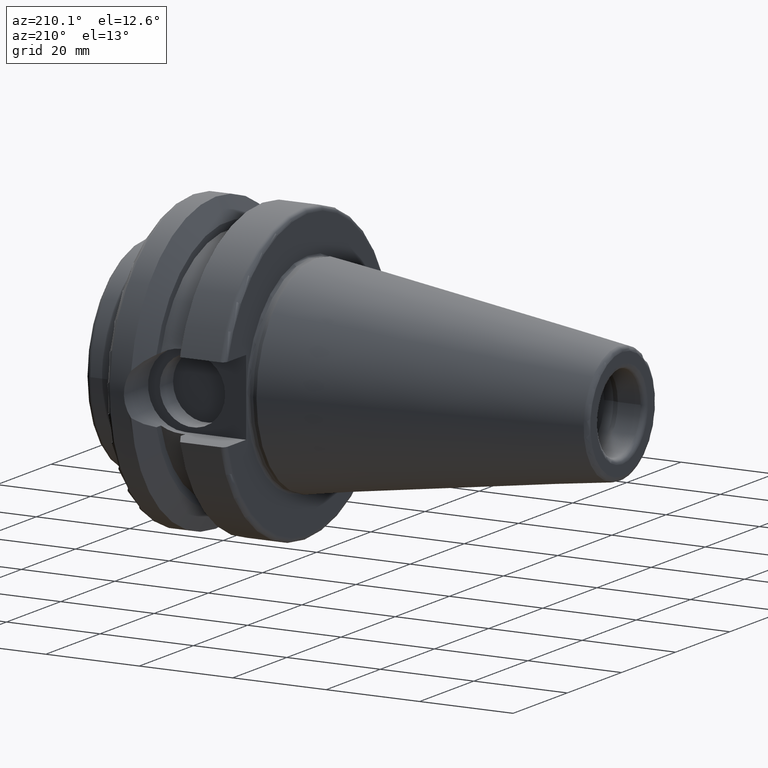
[diagram: clean part render]
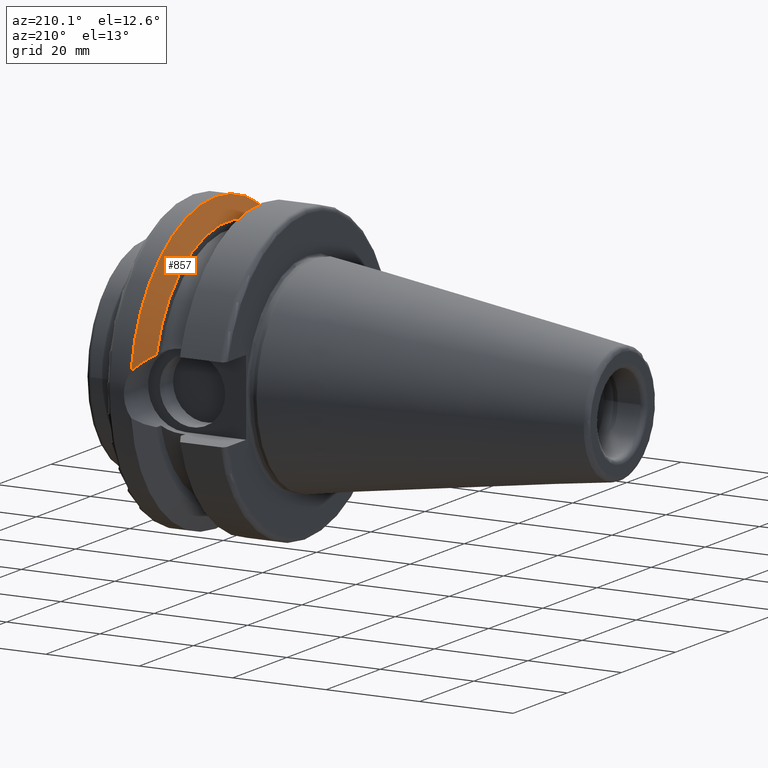
[diagram: same view with one face highlighted and labeled with its STEP entity id]
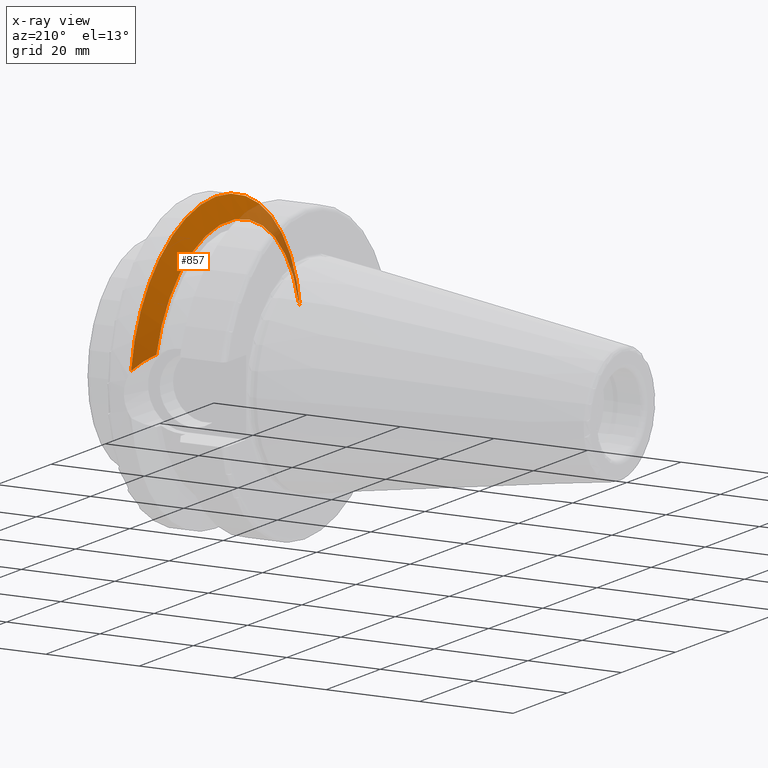
[diagram: x-ray of the same camera — body ghosted, the highlighted face saturated]
A machine part, auxiliary view. The second image highlights one B-rep face of the part: STEP entity #857.
The next image is the same camera in x-ray: the body ghosted, the highlighted face saturated — about 14% of this face is hidden behind the body in this view.
In plain terms, the highlighted conical surface has half-angle 60.125 deg.
Its self-contained STEP definition (entity closure, byte-faithful):
#23=CONICAL_SURFACE('',#975,29.2970358274569,1.0493792127616);
#54=B_SPLINE_CURVE_WITH_KNOTS('',3,(#1458,#1459,#1460,#1461,#1462,#1463),
 .UNSPECIFIED.,.F.,.F.,(4,2,4),(1.46421027899559,1.54570476603972,2.04294020568399),
 .UNSPECIFIED.);
#62=B_SPLINE_CURVE_WITH_KNOTS('',3,(#1601,#1602,#1603,#1604,#1605,#1606),
 .UNSPECIFIED.,.F.,.F.,(4,2,4),(3.12975744792547,3.62699288756974,3.70848737461386),
 .UNSPECIFIED.);
#119=FACE_OUTER_BOUND('',#178,.T.);
#178=EDGE_LOOP('',(#748,#749,#750,#751));
#307=CIRCLE('',#939,31.5);
#324=CIRCLE('',#974,27.0940716549138);
#379=VERTEX_POINT('',#1450);
#380=VERTEX_POINT('',#1457);
#390=VERTEX_POINT('',#1499);
#408=VERTEX_POINT('',#1599);
#473=EDGE_CURVE('',#380,#379,#54,.T.);
#487=EDGE_CURVE('',#390,#379,#307,.T.);
#514=EDGE_CURVE('',#390,#408,#62,.T.);
#527=EDGE_CURVE('',#408,#380,#324,.T.);
#748=ORIENTED_EDGE('',*,*,#473,.T.);
#749=ORIENTED_EDGE('',*,*,#487,.F.);
#750=ORIENTED_EDGE('',*,*,#514,.T.);
#751=ORIENTED_EDGE('',*,*,#527,.T.);
#857=ADVANCED_FACE('',(#119),#23,.T.);
#939=AXIS2_PLACEMENT_3D('',#1510,#1122,#1123);
#974=AXIS2_PLACEMENT_3D('',#1631,#1207,#1208);
#975=AXIS2_PLACEMENT_3D('',#1632,#1209,#1210);
#1122=DIRECTION('center_axis',(1.,0.,0.));
#1123=DIRECTION('ref_axis',(0.,0.,-1.));
#1207=DIRECTION('center_axis',(1.,0.,0.));
#1208=DIRECTION('ref_axis',(0.,0.,-1.));
#1209=DIRECTION('center_axis',(1.,0.,0.));
#1210=DIRECTION('ref_axis',(0.,1.,0.));
#1450=CARTESIAN_POINT('',(21.6309636926618,-31.1782420264945,4.4907932637046));
#1457=CARTESIAN_POINT('',(19.1,-26.201311395455,6.89782574439221));
#1458=CARTESIAN_POINT('Ctrl Pts',(19.1,-26.201311395455,6.89782574439221));
#1459=CARTESIAN_POINT('Ctrl Pts',(19.2210929544554,-26.4384736933511,6.82497151762395));
#1460=CARTESIAN_POINT('Ctrl Pts',(19.3406963650697,-26.6728819297428,6.74867108656039));
#1461=CARTESIAN_POINT('Ctrl Pts',(20.1784155384866,-28.3157123387484,6.18231368976925));
#1462=CARTESIAN_POINT('Ctrl Pts',(20.9728756148303,-29.8797957262939,5.46983244373115));
#1463=CARTESIAN_POINT('Ctrl Pts',(21.6309636926618,-31.1782420264945,4.4907932637046));
#1499=CARTESIAN_POINT('',(21.6309636926618,31.1782420264945,4.4907932637046));
#1510=CARTESIAN_POINT('Origin',(21.6309636926618,0.,0.));
#1599=CARTESIAN_POINT('',(19.1,26.201311395455,6.89782574439221));
#1601=CARTESIAN_POINT('Ctrl Pts',(21.6309636926618,31.1782420264945,4.4907932637046));
#1602=CARTESIAN_POINT('Ctrl Pts',(20.9728756148303,29.8797957262939,5.46983244373114));
#1603=CARTESIAN_POINT('Ctrl Pts',(20.1784155384866,28.3157123387484,6.18231368976924));
#1604=CARTESIAN_POINT('Ctrl Pts',(19.3406963650697,26.6728819297428,6.74867108656039));
#1605=CARTESIAN_POINT('Ctrl Pts',(19.2210929544554,26.438473693351,6.82497151762395));
#1606=CARTESIAN_POINT('Ctrl Pts',(19.1,26.201311395455,6.89782574439221));
#1631=CARTESIAN_POINT('Origin',(19.1,0.,0.));
#1632=CARTESIAN_POINT('Origin',(20.3654818463309,0.,0.));